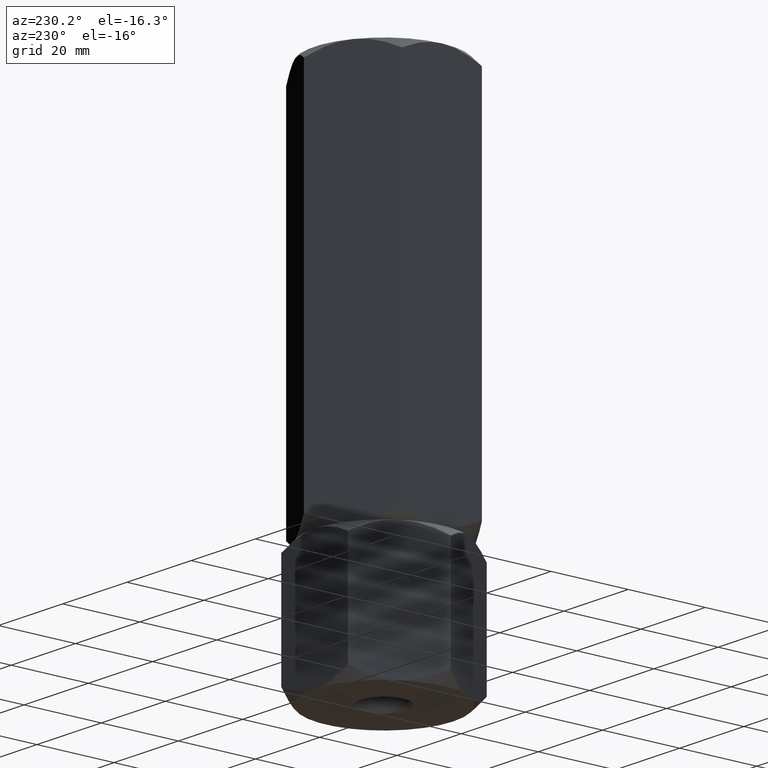
[diagram: clean part render]
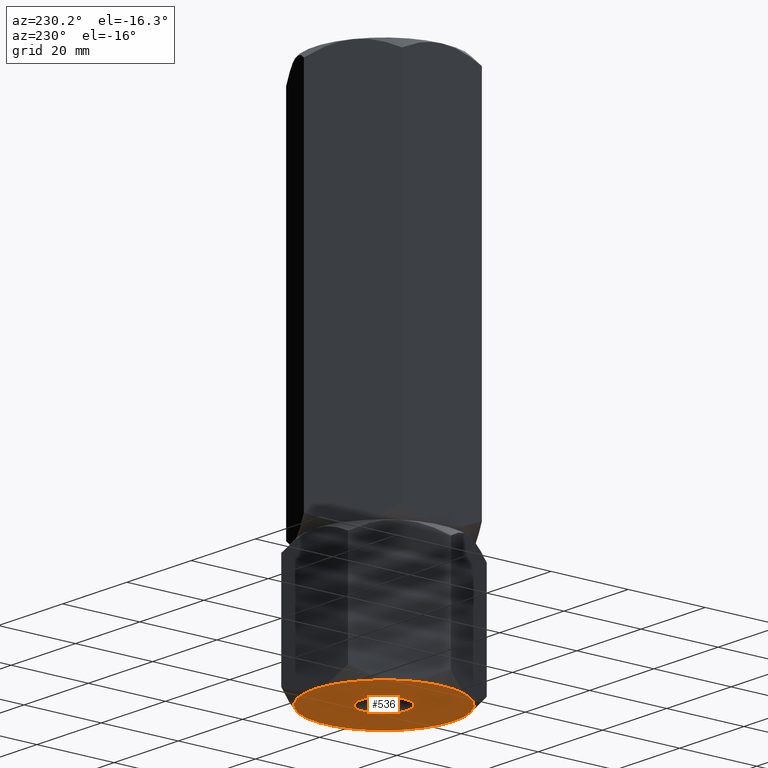
[diagram: same view with one face highlighted and labeled with its STEP entity id]
A machine part, auxiliary view. The second image highlights one B-rep face of the part: STEP entity #536.
In plain terms, the highlighted planar face has unit normal (0, 0, 1).
Its self-contained STEP definition (entity closure, byte-faithful):
#2 = FACE_BOUND ( 'NONE', #1042, .T. ) ;
#10 = ORIENTED_EDGE ( 'NONE', *, *, #113, .F. ) ;
#64 = DIRECTION ( 'NONE',  ( 0.000000000000000000, 0.000000000000000000, 1.000000000000000000 ) ) ;
#96 = DIRECTION ( 'NONE',  ( 1.000000000000000000, 0.000000000000000000, 0.000000000000000000 ) ) ;
#113 = EDGE_CURVE ( 'NONE', #323, #1446, #1311, .T. ) ;
#129 = PLANE ( 'NONE',  #1251 ) ;
#136 = DIRECTION ( 'NONE',  ( 1.000000000000000000, 0.000000000000000000, 0.000000000000000000 ) ) ;
#147 = EDGE_LOOP ( 'NONE', ( #887, #10, #1266, #1054, #1130, #469, #1959 ) ) ;
#166 = DIRECTION ( 'NONE',  ( 0.000000000000000000, 0.000000000000000000, -1.000000000000000000 ) ) ;
#176 = EDGE_CURVE ( 'NONE', #1861, #695, #584, .T. ) ;
#187 = AXIS2_PLACEMENT_3D ( 'NONE', #1798, #1175, #1187 ) ;
#221 = AXIS2_PLACEMENT_3D ( 'NONE', #1634, #166, #351 ) ;
#232 = CARTESIAN_POINT ( 'NONE',  ( 0.000000000000000000, 0.000000000000000000, 0.000000000000000000 ) ) ;
#244 = DIRECTION ( 'NONE',  ( 1.000000000000000000, 0.000000000000000000, 0.000000000000000000 ) ) ;
#257 = DIRECTION ( 'NONE',  ( 1.000000000000000000, 0.000000000000000000, 0.000000000000000000 ) ) ;
#283 = AXIS2_PLACEMENT_3D ( 'NONE', #394, #64, #244 ) ;
#323 = VERTEX_POINT ( 'NONE', #1282 ) ;
#333 = CARTESIAN_POINT ( 'NONE',  ( -6.000000000000032863, 0.000000000000000000, 0.000000000000000000 ) ) ;
#338 = VERTEX_POINT ( 'NONE', #1122 ) ;
#341 = CARTESIAN_POINT ( 'NONE',  ( -18.00000000000000000, 0.000000000000000000, 0.000000000000000000 ) ) ;
#349 = CIRCLE ( 'NONE', #283, 18.00000000000000000 ) ;
#351 = DIRECTION ( 'NONE',  ( -1.000000000000000000, 0.000000000000000000, 0.000000000000000000 ) ) ;
#394 = CARTESIAN_POINT ( 'NONE',  ( 0.000000000000000000, 0.000000000000000000, 0.000000000000000000 ) ) ;
#399 = DIRECTION ( 'NONE',  ( 1.000000000000000000, 0.000000000000000000, 0.000000000000000000 ) ) ;
#469 = ORIENTED_EDGE ( 'NONE', *, *, #176, .F. ) ;
#536 = ADVANCED_FACE ( 'NONE', ( #2, #1550 ), #129, .F. ) ;
#578 = DIRECTION ( 'NONE',  ( 0.000000000000000000, 0.000000000000000000, 1.000000000000000000 ) ) ;
#584 = CIRCLE ( 'NONE', #1616, 18.00000000000000000 ) ;
#585 = CARTESIAN_POINT ( 'NONE',  ( 15.58845726811989252, 9.000000000000003553, 0.000000000000000000 ) ) ;
#605 = CARTESIAN_POINT ( 'NONE',  ( 0.000000000000000000, 18.00000000000000000, 0.000000000000000000 ) ) ;
#612 = CARTESIAN_POINT ( 'NONE',  ( 0.000000000000000000, 0.000000000000000000, 0.000000000000000000 ) ) ;
#615 = VERTEX_POINT ( 'NONE', #605 ) ;
#646 = VERTEX_POINT ( 'NONE', #333 ) ;
#658 = CIRCLE ( 'NONE', #1949, 6.000000000000032863 ) ;
#680 = CIRCLE ( 'NONE', #750, 18.00000000000000000 ) ;
#687 = AXIS2_PLACEMENT_3D ( 'NONE', #1467, #1003, #1427 ) ;
#695 = VERTEX_POINT ( 'NONE', #341 ) ;
#701 = EDGE_CURVE ( 'NONE', #1861, #615, #1680, .T. ) ;
#750 = AXIS2_PLACEMENT_3D ( 'NONE', #612, #578, #1211 ) ;
#772 = CARTESIAN_POINT ( 'NONE',  ( -15.58845726811989607, 8.999999999999996447, 0.000000000000000000 ) ) ;
#783 = CARTESIAN_POINT ( 'NONE',  ( 0.000000000000000000, 0.000000000000000000, 0.000000000000000000 ) ) ;
#787 = CIRCLE ( 'NONE', #687, 6.000000000000032863 ) ;
#859 = EDGE_CURVE ( 'NONE', #338, #646, #658, .T. ) ;
#887 = ORIENTED_EDGE ( 'NONE', *, *, #1713, .F. ) ;
#970 = EDGE_CURVE ( 'NONE', #1772, #1245, #1587, .T. ) ;
#1003 = DIRECTION ( 'NONE',  ( 0.000000000000000000, 0.000000000000000000, 1.000000000000000000 ) ) ;
#1034 = EDGE_CURVE ( 'NONE', #1245, #323, #680, .T. ) ;
#1042 = EDGE_LOOP ( 'NONE', ( #1795, #1648 ) ) ;
#1054 = ORIENTED_EDGE ( 'NONE', *, *, #970, .F. ) ;
#1089 = AXIS2_PLACEMENT_3D ( 'NONE', #1736, #1568, #136 ) ;
#1090 = CIRCLE ( 'NONE', #1836, 18.00000000000000000 ) ;
#1099 = CARTESIAN_POINT ( 'NONE',  ( -15.58845726811989607, -9.000000000000003553, 0.000000000000000000 ) ) ;
#1122 = CARTESIAN_POINT ( 'NONE',  ( 6.000000000000032863, 7.347880794884160165E-16, 0.000000000000000000 ) ) ;
#1130 = ORIENTED_EDGE ( 'NONE', *, *, #1429, .F. ) ;
#1175 = DIRECTION ( 'NONE',  ( 0.000000000000000000, 0.000000000000000000, 1.000000000000000000 ) ) ;
#1187 = DIRECTION ( 'NONE',  ( 1.000000000000000000, 0.000000000000000000, 0.000000000000000000 ) ) ;
#1211 = DIRECTION ( 'NONE',  ( 1.000000000000000000, 0.000000000000000000, 0.000000000000000000 ) ) ;
#1245 = VERTEX_POINT ( 'NONE', #1391 ) ;
#1251 = AXIS2_PLACEMENT_3D ( 'NONE', #783, #1571, #1417 ) ;
#1266 = ORIENTED_EDGE ( 'NONE', *, *, #1034, .F. ) ;
#1282 = CARTESIAN_POINT ( 'NONE',  ( 15.58845726811989429, -9.000000000000001776, 0.000000000000000000 ) ) ;
#1311 = CIRCLE ( 'NONE', #187, 18.00000000000000000 ) ;
#1343 = DIRECTION ( 'NONE',  ( 0.000000000000000000, 0.000000000000000000, 1.000000000000000000 ) ) ;
#1391 = CARTESIAN_POINT ( 'NONE',  ( 3.004629197474318851E-15, -18.00000000000000000, 0.000000000000000000 ) ) ;
#1417 = DIRECTION ( 'NONE',  ( 1.000000000000000000, 0.000000000000000000, -0.000000000000000000 ) ) ;
#1427 = DIRECTION ( 'NONE',  ( 1.000000000000000000, 0.000000000000000000, 0.000000000000000000 ) ) ;
#1429 = EDGE_CURVE ( 'NONE', #695, #1772, #1090, .T. ) ;
#1446 = VERTEX_POINT ( 'NONE', #585 ) ;
#1467 = CARTESIAN_POINT ( 'NONE',  ( 0.000000000000000000, 0.000000000000000000, 0.000000000000000000 ) ) ;
#1520 = DIRECTION ( 'NONE',  ( 0.000000000000000000, 0.000000000000000000, 1.000000000000000000 ) ) ;
#1526 = DIRECTION ( 'NONE',  ( 0.000000000000000000, 0.000000000000000000, 1.000000000000000000 ) ) ;
#1550 = FACE_OUTER_BOUND ( 'NONE', #147, .T. ) ;
#1568 = DIRECTION ( 'NONE',  ( 0.000000000000000000, 0.000000000000000000, 1.000000000000000000 ) ) ;
#1571 = DIRECTION ( 'NONE',  ( 0.000000000000000000, 0.000000000000000000, 1.000000000000000000 ) ) ;
#1587 = CIRCLE ( 'NONE', #1089, 18.00000000000000000 ) ;
#1616 = AXIS2_PLACEMENT_3D ( 'NONE', #232, #1343, #399 ) ;
#1634 = CARTESIAN_POINT ( 'NONE',  ( 0.000000000000000000, 0.000000000000000000, 0.000000000000000000 ) ) ;
#1648 = ORIENTED_EDGE ( 'NONE', *, *, #859, .T. ) ;
#1680 = CIRCLE ( 'NONE', #221, 18.00000000000000000 ) ;
#1713 = EDGE_CURVE ( 'NONE', #1446, #615, #349, .T. ) ;
#1736 = CARTESIAN_POINT ( 'NONE',  ( 0.000000000000000000, 0.000000000000000000, 0.000000000000000000 ) ) ;
#1772 = VERTEX_POINT ( 'NONE', #1099 ) ;
#1795 = ORIENTED_EDGE ( 'NONE', *, *, #1980, .T. ) ;
#1798 = CARTESIAN_POINT ( 'NONE',  ( 0.000000000000000000, 0.000000000000000000, 0.000000000000000000 ) ) ;
#1812 = CARTESIAN_POINT ( 'NONE',  ( 0.000000000000000000, 0.000000000000000000, 0.000000000000000000 ) ) ;
#1836 = AXIS2_PLACEMENT_3D ( 'NONE', #1963, #1520, #96 ) ;
#1861 = VERTEX_POINT ( 'NONE', #772 ) ;
#1949 = AXIS2_PLACEMENT_3D ( 'NONE', #1812, #1526, #257 ) ;
#1959 = ORIENTED_EDGE ( 'NONE', *, *, #701, .T. ) ;
#1963 = CARTESIAN_POINT ( 'NONE',  ( 0.000000000000000000, 0.000000000000000000, 0.000000000000000000 ) ) ;
#1980 = EDGE_CURVE ( 'NONE', #646, #338, #787, .T. ) ;